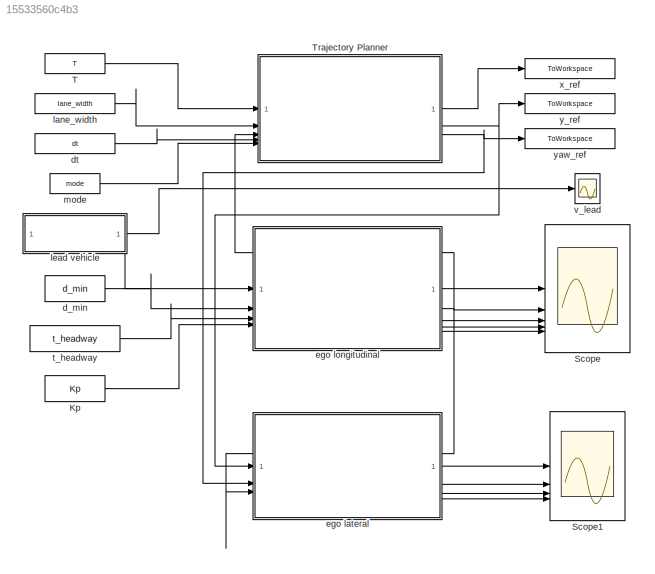
MODEL slx_15533560c4b3
KIND model
CONFIG AbsTol = auto
CONFIG EnableMultiTasking = off
CONFIG FixedStep = 0.1
CONFIG InitFcn = dt = 0.1; T = 20;\nv_ego0 = 15; d_min = 5; t_headway = 1.2; \nKp = 0.5;\nlane_width = 3.5;\nmode = 1; % mode = 1 (Keep lane), mode = 2 (Change lane)\nL = 2.8; K_y = 0.2; K_psi = 1.0; \ndel_actual = 0.2; delta_max = 25*pi/180;\n\n% Lead vehicle and ego car's initial conditions\nx_lead0 = 30; x_ego0 = 0;\nv_lead0 = 13;\ny_lead0 = 0; y_ego0 = 0;\n\n\n\n
CONFIG MaxStep = auto
CONFIG MinStep = auto
CONFIG RelTol = 1e-3
CONFIG SampleTimeConstraint = Unconstrained
CONFIG SolverName = ode4
CONFIG StartTime = 0.0
CONFIG StopTime = T
BLOCK [Constant] Kp
  Value = Kp
BLOCK [Scope] Scope
  Floating = off
  NumInputPorts = 5
  ScopeSpecificationString = Simulink.scopes.TimeScopeBlockCfg('CurrentConfiguration', extmgr.ConfigurationSet(extmgr.Configuration('Core','General UI',true),extmgr.Configuration('Core','Source UI',true),extmgr.Configuration('Sources','WiredSimulink',true),extmgr.Configuration('Visuals','Time Domain',true,'SerializedDisplays',{struct('MinYLimReal','-32.59639','MaxYLimReal','251','YLabelReal','','MinYLimMag','0.00000','MaxYLim...<+1617ch>
BLOCK [Scope] Scope1
  Floating = off
  NumInputPorts = 4
  ScopeSpecificationString = Simulink.scopes.TimeScopeBlockCfg('CurrentConfiguration', extmgr.ConfigurationSet(extmgr.Configuration('Core','General UI',true),extmgr.Configuration('Core','Source UI',true),extmgr.Configuration('Sources','WiredSimulink',true,'DataLoggingVariableName','ScopeData1'),extmgr.Configuration('Visuals','Time Domain',true,'SerializedDisplays',{struct('MinYLimReal','-1','MaxYLimReal','1','YLabelReal','','...<+1596ch>
BLOCK [Constant] T
  Value = T
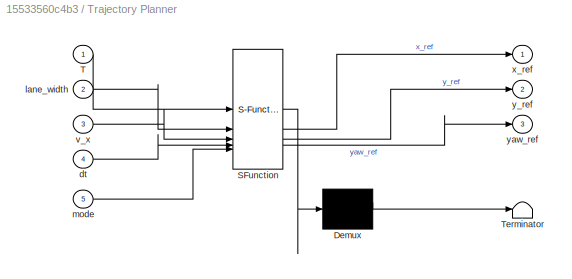
BLOCK [SubSystem] Trajectory Planner
  ErrorFcn = Stateflow.Translate.translate
  PermitHierarchicalResolution = ExplicitOnly
  SFBlockType = MATLAB Function
  TreatAsAtomicUnit = on
BLOCK [Demux] Trajectory Planner/ Demux 
  Outputs = 1
BLOCK [S-Function] Trajectory Planner/ SFunction 
  EnableBusSupport = on
  FunctionName = sf_sfun
  PortCounts = [5 4]
  SFcnIsStateOwnerBlock = off
  SFunctionDeploymentMode = off
  Tag = Stateflow S-Function 2
BLOCK [Terminator] Trajectory Planner/ Terminator 
BLOCK [Inport] Trajectory Planner/T
BLOCK [Inport] Trajectory Planner/dt
  Port = 4
BLOCK [Inport] Trajectory Planner/lane_width
  Port = 2
BLOCK [Inport] Trajectory Planner/mode
  Port = 5
BLOCK [Inport] Trajectory Planner/v_x
  Port = 3
BLOCK [Outport] Trajectory Planner/x_ref
BLOCK [Outport] Trajectory Planner/y_ref
  Port = 2
BLOCK [Outport] Trajectory Planner/yaw_ref
  Port = 3
BLOCK [Constant] d_min
  Value = d_min
BLOCK [Constant] dt
  Value = dt
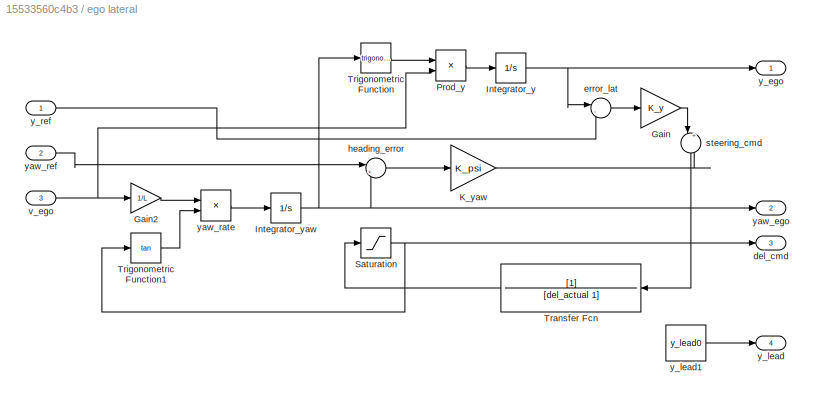
BLOCK [SubSystem] ego lateral
BLOCK [Gain] ego lateral/Gain
  Gain = K_y
BLOCK [Gain] ego lateral/Gain2
  Gain = 1/L
BLOCK [Integrator] ego lateral/Integrator_y
BLOCK [Integrator] ego lateral/Integrator_yaw
BLOCK [Gain] ego lateral/K_yaw
  Gain = K_psi
BLOCK [Product] ego lateral/Prod_y
BLOCK [Saturate] ego lateral/Saturation
  LowerLimit = -delta_max
  UpperLimit = delta_max
BLOCK [TransferFcn] ego lateral/Transfer Fcn
  Denominator = [del_actual 1]
BLOCK [Trigonometry] ego lateral/Trigonometric Function
BLOCK [Trigonometry] ego lateral/Trigonometric Function1
  Operator = tan
BLOCK [Outport] ego lateral/del_cmd
  Port = 3
BLOCK [Sum] ego lateral/error_lat
  Inputs = |-+
BLOCK [Sum] ego lateral/heading_error
  Inputs = |+-
BLOCK [Sum] ego lateral/steering_cmd
  Inputs = |++
  NameLocation = left
BLOCK [Inport] ego lateral/v_ego
  Port = 3
BLOCK [Outport] ego lateral/y_ego
BLOCK [Outport] ego lateral/y_lead
  Port = 4
BLOCK [Constant] ego lateral/y_lead1
  Value = y_lead0
BLOCK [Inport] ego lateral/y_ref
BLOCK [Outport] ego lateral/yaw_ego
  Port = 2
BLOCK [Product] ego lateral/yaw_rate
BLOCK [Inport] ego lateral/yaw_ref
  Port = 2
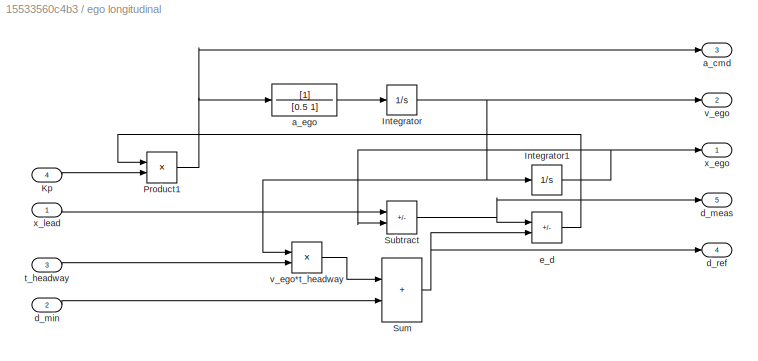
BLOCK [SubSystem] ego longitudinal
BLOCK [Integrator] ego longitudinal/Integrator
  InitialCondition = v_ego0
BLOCK [Integrator] ego longitudinal/Integrator1
  InitialCondition = x_ego0
BLOCK [Inport] ego longitudinal/Kp
  Port = 4
BLOCK [Product] ego longitudinal/Product1
BLOCK [Sum] ego longitudinal/Subtract
  IconShape = rectangular
  Inputs = +-
BLOCK [Sum] ego longitudinal/Sum
  IconShape = rectangular
BLOCK [Outport] ego longitudinal/a_cmd
  Port = 3
BLOCK [TransferFcn] ego longitudinal/a_ego
  Denominator = [0.5 1]
BLOCK [Outport] ego longitudinal/d_meas
  Port = 5
BLOCK [Inport] ego longitudinal/d_min
  Port = 2
BLOCK [Outport] ego longitudinal/d_ref
  Port = 4
BLOCK [Sum] ego longitudinal/e_d
  IconShape = rectangular
  Inputs = +-
BLOCK [Inport] ego longitudinal/t_headway
  Port = 3
BLOCK [Outport] ego longitudinal/v_ego
  Port = 2
BLOCK [Product] ego longitudinal/v_ego*t_headway
BLOCK [Outport] ego longitudinal/x_ego
BLOCK [Inport] ego longitudinal/x_lead
BLOCK [Constant] lane_width
  Value = lane_width
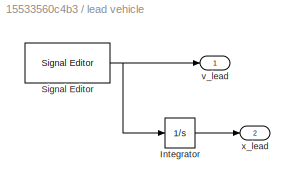
BLOCK [SubSystem] lead vehicle
BLOCK [Integrator] lead vehicle/Integrator
  InitialCondition = v_lead0
BLOCK [Reference] lead vehicle/Signal Editor  REF=SignalEditorBlockLib/Signal Editor
  LibrarySourceBlock = simulink/Sources/Signal Editor
  SourceBlock = SignalEditorBlockLib/Signal Editor
  SourceType = SignalEditor
  UserDataPersistent = on
BLOCK [Outport] lead vehicle/v_lead
BLOCK [Outport] lead vehicle/x_lead
  Port = 2
BLOCK [Constant] mode
  Value = mode
BLOCK [Constant] t_headway
  Value = t_headway
BLOCK [Scope] v_lead
  Floating = off
  NumInputPorts = 1
  ScopeSpecificationString = Simulink.scopes.TimeScopeBlockCfg('CurrentConfiguration', extmgr.ConfigurationSet(extmgr.Configuration('Core','General UI',true),extmgr.Configuration('Core','Source UI',true),extmgr.Configuration('Sources','WiredSimulink',true,'DataLoggingVariableName','ScopeData1'),extmgr.Configuration('Visuals','Time Domain',true,'SerializedDisplays',{struct('MinYLimReal','-2.00000','MaxYLimReal','18.00000','YLa...<+1437ch>
BLOCK [ToWorkspace] x_ref
  FixptAsFi = on
  MaxDataPoints = inf
  SampleTime = -1
  SaveFormat = Timeseries
  VariableName = x_ego_ref_ws
BLOCK [ToWorkspace] y_ref
  FixptAsFi = on
  MaxDataPoints = inf
  SampleTime = -1
  SaveFormat = Timeseries
  VariableName = y_ego_ref_ws
BLOCK [ToWorkspace] yaw_ref
  FixptAsFi = on
  MaxDataPoints = inf
  SampleTime = -1
  SaveFormat = Timeseries
  VariableName = yaw_ego_ref_ws
LINE Kp:1 -> ego longitudinal:4
LINE T:1 -> Trajectory Planner:1
LINE Trajectory Planner:1 -> x_ref:1
NET Trajectory Planner:2 -> ego lateral:1, y_ref:1
NET Trajectory Planner:3 -> ego lateral:2, yaw_ref:1
LINE d_min:1 -> ego longitudinal:2
LINE dt:1 -> Trajectory Planner:4
LINE ego lateral/Gain2:1 -> ego lateral/yaw_rate:1
LINE ego lateral/Gain:1 -> ego lateral/steering_cmd:1
NET ego lateral/Integrator_y:1 -> ego lateral/error_lat:1, ego lateral/y_ego:1
NET ego lateral/Integrator_yaw:1 -> ego lateral/Trigonometric Function:1, ego lateral/heading_error:2, ego lateral/yaw_ego:1
LINE ego lateral/K_yaw:1 -> ego lateral/steering_cmd:2
LINE ego lateral/Prod_y:1 -> ego lateral/Integrator_y:1
NET ego lateral/Saturation:1 -> ego lateral/Trigonometric Function1:1, ego lateral/del_cmd:1
LINE ego lateral/Transfer Fcn:1 -> ego lateral/Saturation:1
LINE ego lateral/Trigonometric Function1:1 -> ego lateral/yaw_rate:2
LINE ego lateral/Trigonometric Function:1 -> ego lateral/Prod_y:1
LINE ego lateral/error_lat:1 -> ego lateral/Gain:1
LINE ego lateral/heading_error:1 -> ego lateral/K_yaw:1
LINE ego lateral/steering_cmd:1 -> ego lateral/Transfer Fcn:1
NET ego lateral/v_ego:1 -> ego lateral/Gain2:1, ego lateral/Prod_y:2
LINE ego lateral/y_lead1:1 -> ego lateral/y_lead:1
LINE ego lateral/y_ref:1 -> ego lateral/error_lat:2
LINE ego lateral/yaw_rate:1 -> ego lateral/Integrator_yaw:1
LINE ego lateral/yaw_ref:1 -> ego lateral/heading_error:1
LINE ego lateral:1 -> Scope1:1
LINE ego lateral:2 -> Scope1:2
LINE ego lateral:3 -> Scope1:3
LINE ego lateral:4 -> Scope1:4
NET ego longitudinal/Integrator1:1 -> ego longitudinal/Subtract:2, ego longitudinal/x_ego:1
NET ego longitudinal/Integrator:1 -> ego longitudinal/Integrator1:1, ego longitudinal/v_ego*t_headway:1, ego longitudinal/v_ego:1
LINE ego longitudinal/Kp:1 -> ego longitudinal/Product1:2
NET ego longitudinal/Product1:1 -> ego longitudinal/a_cmd:1, ego longitudinal/a_ego:1
NET ego longitudinal/Subtract:1 -> ego longitudinal/d_meas:1, ego longitudinal/e_d:1
NET ego longitudinal/Sum:1 -> ego longitudinal/d_ref:1, ego longitudinal/e_d:2
LINE ego longitudinal/a_ego:1 -> ego longitudinal/Integrator:1
LINE ego longitudinal/d_min:1 -> ego longitudinal/Sum:2
LINE ego longitudinal/e_d:1 -> ego longitudinal/Product1:1
LINE ego longitudinal/t_headway:1 -> ego longitudinal/v_ego*t_headway:2
LINE ego longitudinal/v_ego*t_headway:1 -> ego longitudinal/Sum:1
LINE ego longitudinal/x_lead:1 -> ego longitudinal/Subtract:1
LINE ego longitudinal:1 -> Scope:1
NET ego longitudinal:2 -> Scope:2, Trajectory Planner:3, ego lateral:3
LINE ego longitudinal:3 -> Scope:3
LINE ego longitudinal:4 -> Scope:4
LINE ego longitudinal:5 -> Scope:5
LINE lane_width:1 -> Trajectory Planner:2
LINE lead vehicle/Integrator:1 -> lead vehicle/x_lead:1
NET lead vehicle/Signal Editor:1 -> lead vehicle/Integrator:1, lead vehicle/v_lead:1
LINE lead vehicle:1 -> v_lead:1
LINE lead vehicle:2 -> ego longitudinal:1
LINE mode:1 -> Trajectory Planner:5
LINE t_headway:1 -> ego longitudinal:3
note: NET lines group one-source signal fan-out (src -> all destinations, sorted); 1:1 wires keep LINE
CHART Trajectory Planner states=1 transitions=1
  STATE_LABEL 'eML_blk_kernel()'
  STATE_LABEL 'SCRIPT:\nfunction [x_ref, y_ref, yaw_ref] = traj_planner_v2(T, lane_width, v_x, dt, mode)\n% Simulink-safe Trajectory Planner Function\n% Generates lane-keeping or lane-change path\n\n%-----------------------------------------------------------\n% Persistent declarations\n%-----------------------------------------------------------\npersistent idx x y yaw N initialized\n\n%----------------------------------...<+1509ch>'
CHART  states=0 transitions=0
